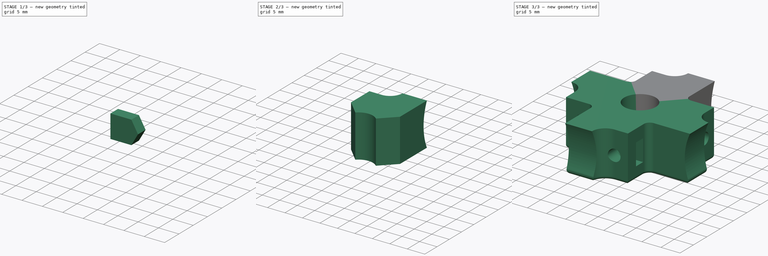
[diagram: build sequence overview — one tinted view per stage of 3, left to right]
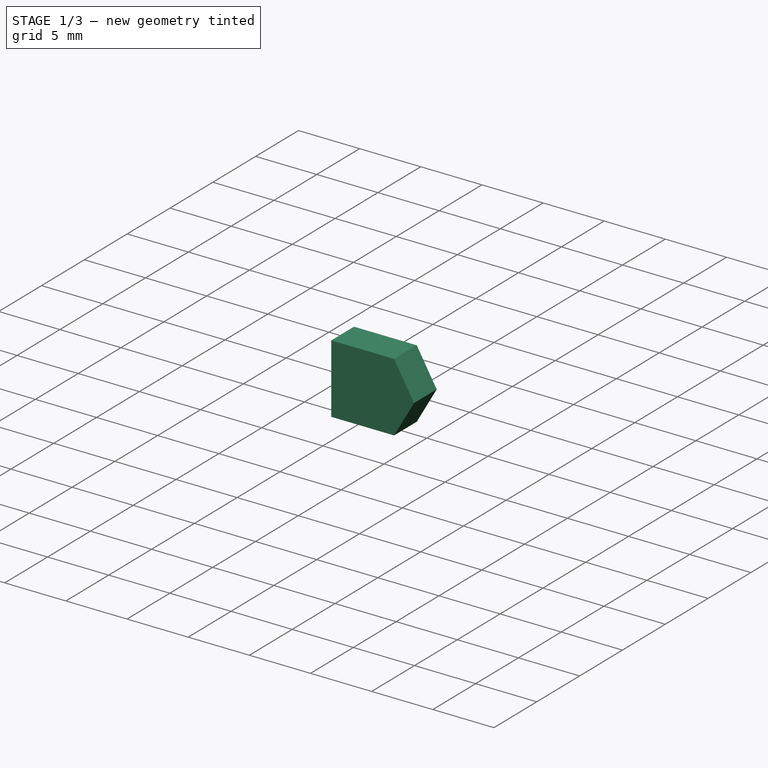
[diagram: stage 1 of 3 — iso view after this stage's code; geometry added in this stage tinted green]
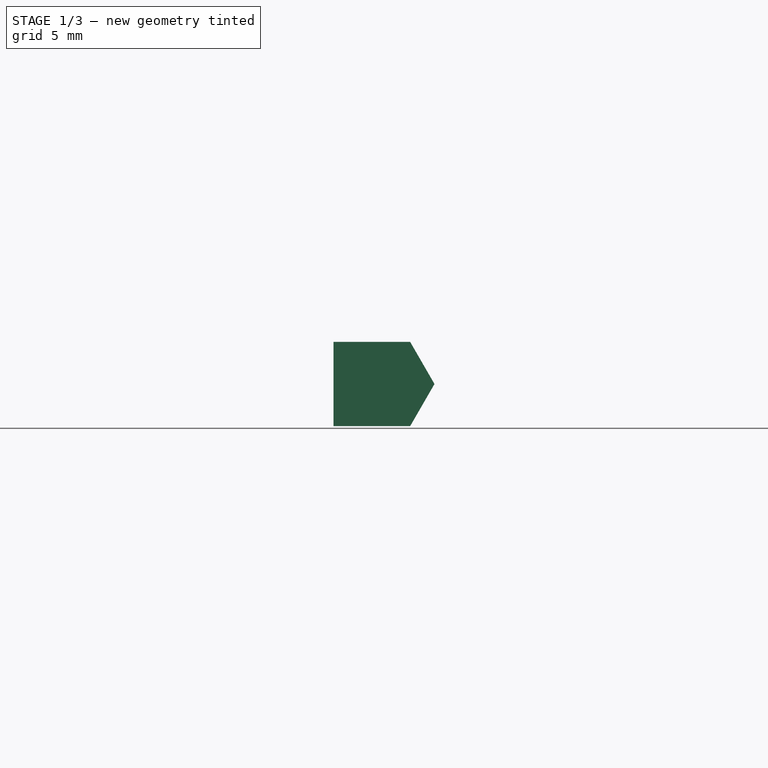
[diagram: stage 1 of 3 — front view after this stage's code; geometry added in this stage tinted green]
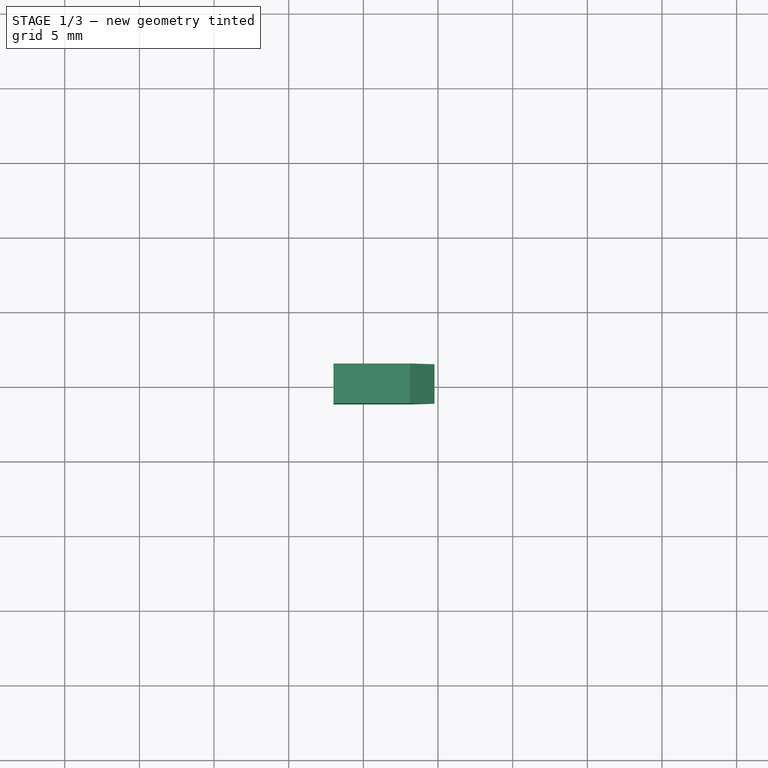
[diagram: stage 1 of 3 — top view after this stage's code; geometry added in this stage tinted green]
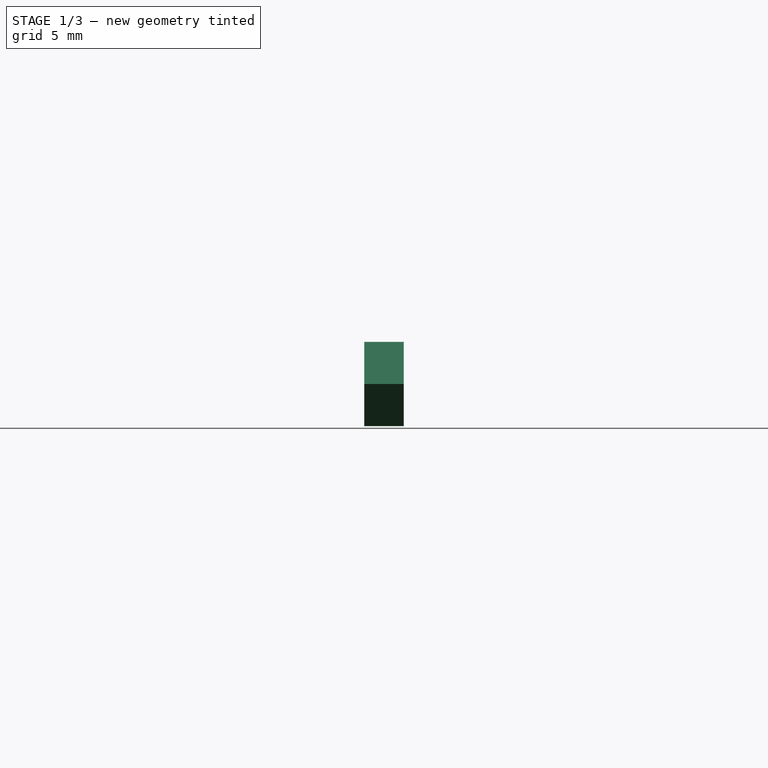
[diagram: stage 1 of 3 — right view after this stage's code; geometry added in this stage tinted green]
FCSTD DOCUMENT  (FreeCAD 0.16RUnknown)
Label: joint-base-x.012
License: All rights reserved
LicenseURL: http://en.wikipedia.org/wiki/All_rights_reserved
objects: Sketcher::SketchObject×4, Part::Feature×3, Part::Extrusion×2, PartDesign::Pocket×2, Part::Fillet×2, Part::Cut×1, Part::MultiFuse×1
note: 17 computed .brp shape members not serialized (recipe doc carries the construction recipe); baked Part::Feature solids carry a one-line shape summary decoded from their .brp

FEATURE [Sketcher::SketchObject] Sketch
  sketch-geometry (13):
    g0: ArcOfCircle CenterX=0 CenterY=0 CenterZ=0 NormalX=0 NormalY=0 NormalZ=1 Radius=4.15 StartAngle=0.785398 EndAngle=2.35619
    g1: ArcOfCircle [constr] CenterX=0 CenterY=0 CenterZ=0 NormalX=0 NormalY=0 NormalZ=1 Radius=4.15 StartAngle=2.35619 EndAngle=7.06858
    g2: LineSegment [constr] StartX=0 StartY=0 StartZ=0 EndX=-2.93449 EndY=2.93449 EndZ=0
    g3: LineSegment StartX=-2.93449 StartY=2.93449 StartZ=0 EndX=-7 EndY=7 EndZ=0
    g4: LineSegment StartX=-7 StartY=7 StartZ=0 EndX=-7 EndY=14.5 EndZ=0
    g5: LineSegment StartX=-7 StartY=14.5 StartZ=0 EndX=-3.5 EndY=14.5 EndZ=0
    g6: LineSegment [constr] StartX=-3.5 StartY=14.5 StartZ=0 EndX=-3.5 EndY=18 EndZ=0
    g7: LineSegment [constr] StartX=-3.5 StartY=18 StartZ=0 EndX=0 EndY=18 EndZ=0
    g8: LineSegment StartX=0 StartY=18 StartZ=0 EndX=7 EndY=18 EndZ=0
    g9: LineSegment StartX=7 StartY=18 StartZ=0 EndX=7 EndY=7 EndZ=0
    g10: LineSegment StartX=7 StartY=7 StartZ=0 EndX=2.93449 EndY=2.93449 EndZ=0
    g11: LineSegment [constr] StartX=2.93449 StartY=2.93449 StartZ=0 EndX=-2.93449 EndY=2.93449 EndZ=0
    g12: ArcOfCircle CenterX=-3.5 CenterY=18 CenterZ=0 NormalX=0 NormalY=0 NormalZ=1 Radius=3.5 StartAngle=4.71239 EndAngle=6.28319
  constraints (36):
    c: Coincident(g0,g1)
    c: Coincident(g0,g-1)
    c: Coincident(g0,g1)
    c: Coincident(g0,g1)
    c: Coincident(g2,g3)
    c: Coincident(g3,g4)
    c: Vertical(g4)
    c: Coincident(g4,g5)
    c: Horizontal(g5)
    c: Coincident(g5,g6)
    c: Vertical(g6)
    c: Coincident(g6,g7)
    c: Horizontal(g7)
    c: Coincident(g7,g8)
    c: Horizontal(g8)
    c: Coincident(g8,g9)
    c: Vertical(g9)
    c: Coincident(g9,g10)
    c: Coincident(g10,g11)
    c: Horizontal(g11)
    c: Coincident(g0,g2)
    c: Coincident(g0,g2)
    c: Coincident(g0,g11)
    c: Coincident(g0,g10)
    c: Coincident(g6,g12)
    c: Coincident(g7,g12)
    c: Coincident(g5,g12)
    c: PointOnObject(g7,g-2)
    c: Equal(g5,g7)
    c: Equal(g3,g10)
    c: Angle(g3,g4) = 2.35619
    c: Angle(g9,g10) = 2.35619
    c: DistanceX(g4,g8) = 14
    c: DistanceY(g9,g9) = 11
    c: Parallel(g2,g3)
    c: Radius(g0) = 4.15
FEATURE [Part::Extrusion] Extrude
  Base = -> Sketch
  Dir = (0,0,12.2)
  Solid = true
FEATURE [Sketcher::SketchObject] Sketch001
  ExternalGeometry = -> [Extrude]
  Placement = pos=(0,14.5,0) rot=(0,0.707107,0.707107;3.14159rad)
  Support = -> Extrude [Face4]
  sketch-geometry (3):
    g0: Circle CenterX=3.5 CenterY=6.1 CenterZ=0 NormalX=0 NormalY=0 NormalZ=1 Radius=1.55
    g1: LineSegment [constr] StartX=3.5 StartY=12.2 StartZ=0 EndX=3.5 EndY=6.1 EndZ=0
    g2: LineSegment [constr] StartX=3.5 StartY=6.1 StartZ=0 EndX=3.5 EndY=0 EndZ=0
  constraints (8):
    c: Vertical(g1)
    c: Coincident(g1,g2)
    c: Vertical(g2)
    c: Equal(g1,g2)
    c: Coincident(g0,g1)
    c: Coincident(g1,g-3)
    c: Coincident(g2,g-3)
    c: Radius(g0) = 1.55
FEATURE [PartDesign::Pocket] Pocket
  Length = 14
  Midplane = true
  Sketch = -> Sketch001
  Type = 0
FEATURE [Sketcher::SketchObject] Sketch002
  ExternalGeometry = -> [Pocket]
  Placement = pos=(0,14.5,0) rot=(0,0.707107,0.707107;3.14159rad)
  Support = -> Pocket [Face8]
  sketch-geometry (6):
    g0: LineSegment [constr] StartX=3.5 StartY=6.1 StartZ=0 EndX=0.237971 EndY=6.1 EndZ=0
    g1: LineSegment StartX=0.237971 StartY=6.1 StartZ=0 EndX=1.86899 EndY=8.925 EndZ=0
    g2: LineSegment StartX=1.86899 StartY=8.925 StartZ=0 EndX=7 EndY=8.925 EndZ=0
    g3: LineSegment StartX=7 StartY=8.925 StartZ=0 EndX=7 EndY=3.275 EndZ=0
    g4: LineSegment StartX=7 StartY=3.275 StartZ=0 EndX=1.86899 EndY=3.275 EndZ=0
    g5: LineSegment StartX=1.86899 StartY=3.275 StartZ=0 EndX=0.237971 EndY=6.1 EndZ=0
  constraints (17):
    c: Horizontal(g0)
    c: Coincident(g0,g1)
    c: Coincident(g1,g2)
    c: Horizontal(g2)
    c: Coincident(g2,g3)
    c: Vertical(g3)
    c: Coincident(g3,g4)
    c: Horizontal(g4)
    c: Coincident(g4,g5)
    c: Coincident(g0,g5)
    c: Coincident(g0,g-3)
    c: Equal(g2,g4)
    c: DistanceY(g3,g3) = 5.65
    c: Angle(g5,g1) = 2.0944
    c: Equal(g5,g0)
    c: Equal(g0,g1)
    c: PointOnObject(g2,g-4)
FEATURE [Part::Extrusion] Extrude001
  Base = -> Sketch002
  Dir = (0,-2.65,0)
  Placement = pos=(0,-3,0) rot=(0,0,1;0rad)
  Solid = true
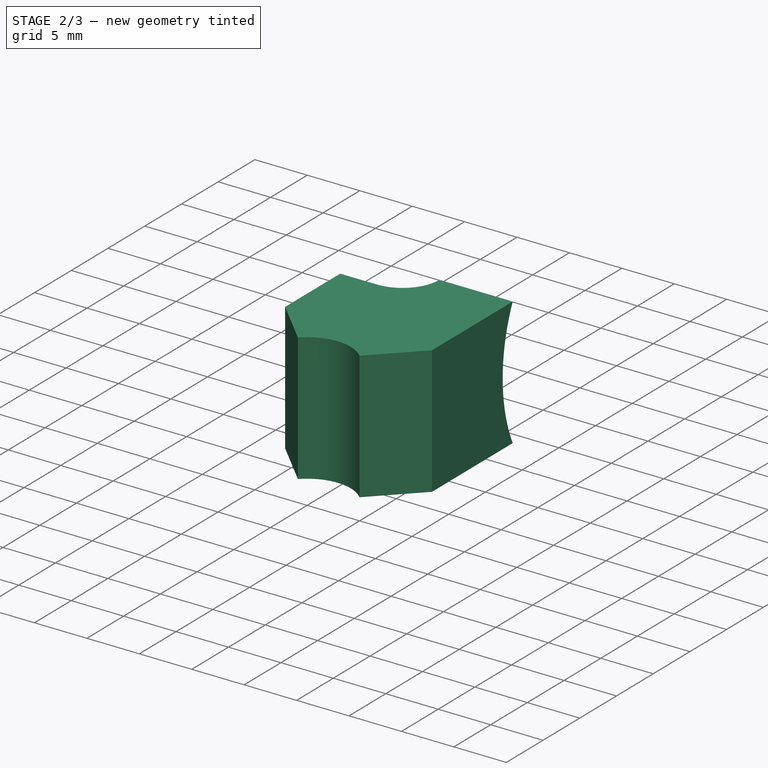
[diagram: stage 2 of 3 — iso view after this stage's code; geometry added in this stage tinted green]
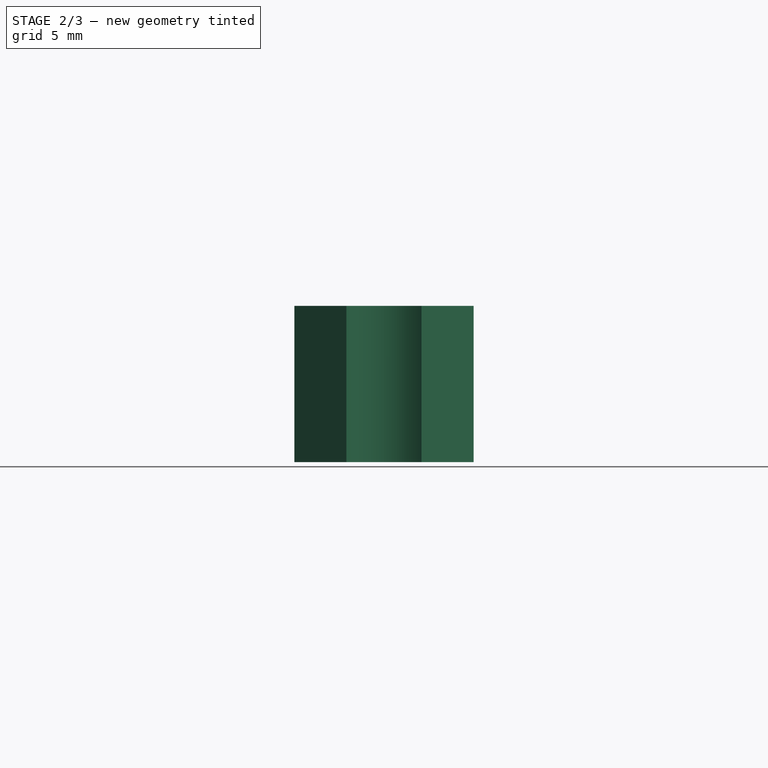
[diagram: stage 2 of 3 — front view after this stage's code; geometry added in this stage tinted green]
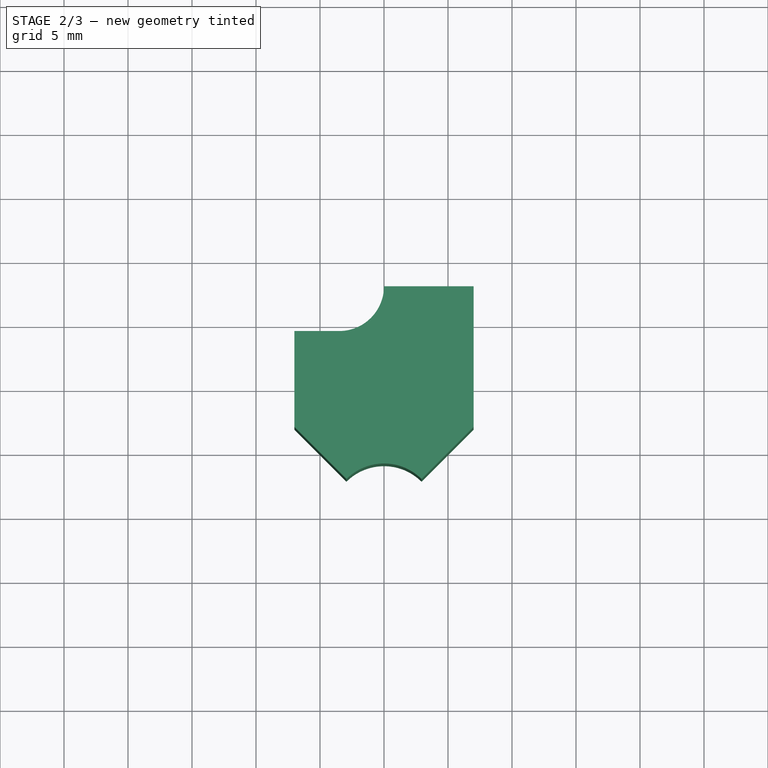
[diagram: stage 2 of 3 — top view after this stage's code; geometry added in this stage tinted green]
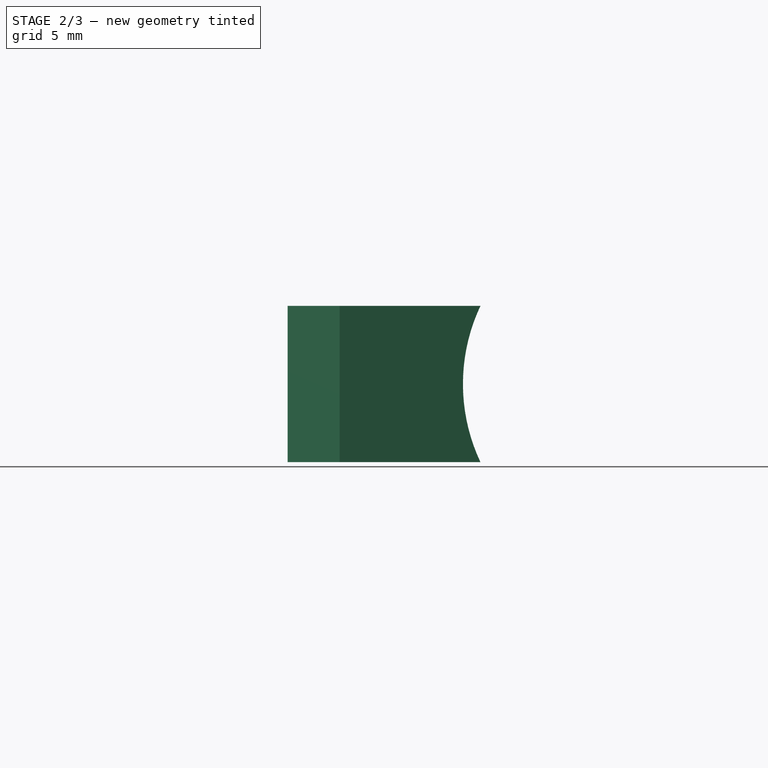
[diagram: stage 2 of 3 — right view after this stage's code; geometry added in this stage tinted green]
FEATURE [Part::Cut] Cut
  Base = -> Pocket
  Tool = -> Extrude001
FEATURE [Sketcher::SketchObject] Sketch003
  ExternalGeometry = -> [Cut]
  Placement = pos=(7,0,0) rot=(0.57735,0.57735,0.57735;2.0944rad)
  Support = -> Cut [Face6]
  sketch-geometry (2):
    g0: LineSegment StartX=18 StartY=12.2 StartZ=0 EndX=18 EndY=0 EndZ=0
    g1: ArcOfCircle CenterX=30.9337 CenterY=6.1 CenterZ=0 NormalX=0 NormalY=0 NormalZ=1 Radius=14.3 StartAngle=2.70089 EndAngle=3.58229
  constraints (6):
    c: Vertical(g0)
    c: Coincident(g0,g1)
    c: Coincident(g0,g-3)
    c: Coincident(g0,g1)
    c: Coincident(g0,g-3)
    c: Radius(g1) = 14.3
FEATURE [PartDesign::Pocket] Pocket001
  Length = 5
  Sketch = -> Sketch003
  Type = 1
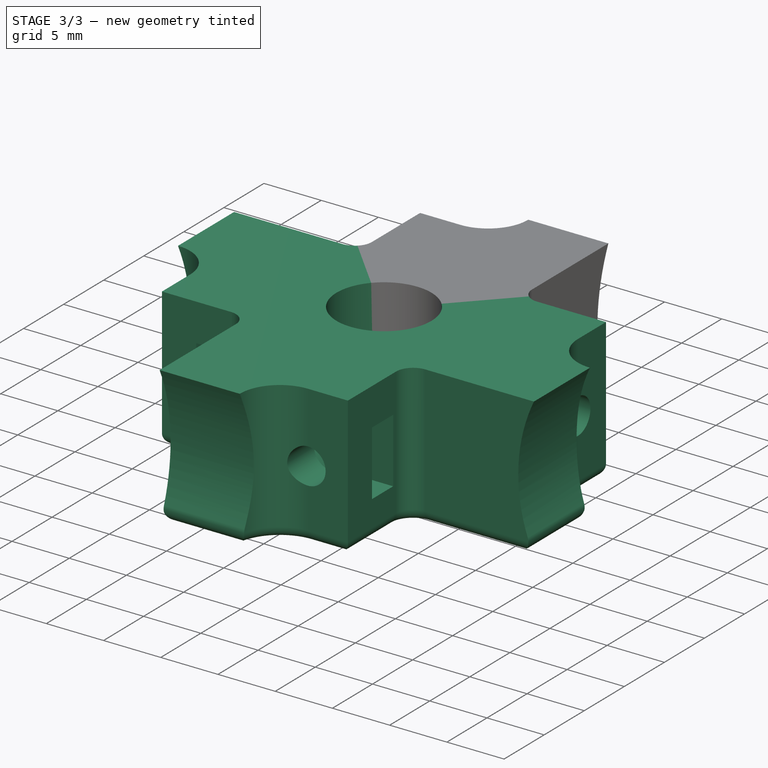
[diagram: stage 3 of 3 — iso view after this stage's code; geometry added in this stage tinted green]
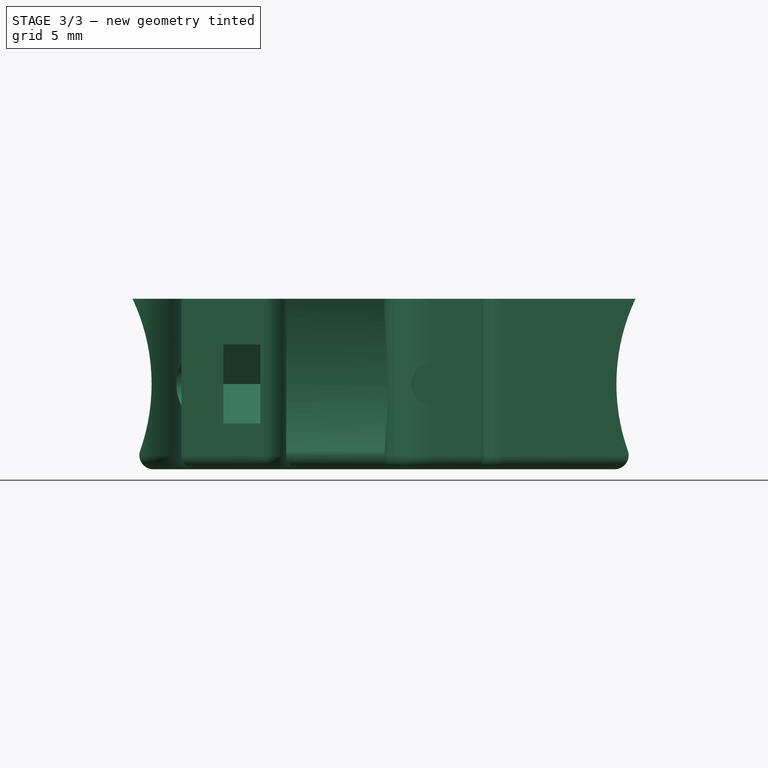
[diagram: stage 3 of 3 — front view after this stage's code; geometry added in this stage tinted green]
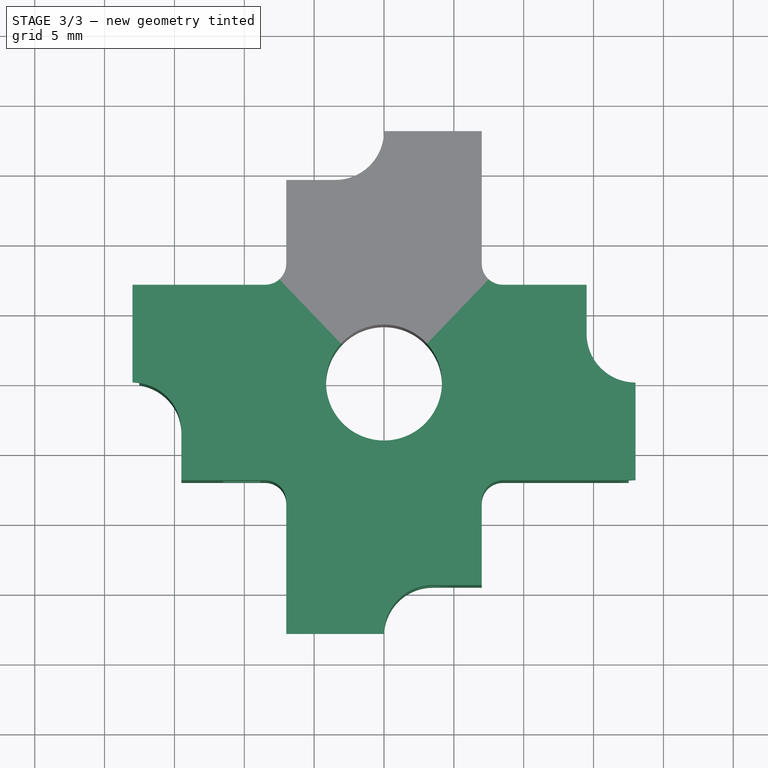
[diagram: stage 3 of 3 — top view after this stage's code; geometry added in this stage tinted green]
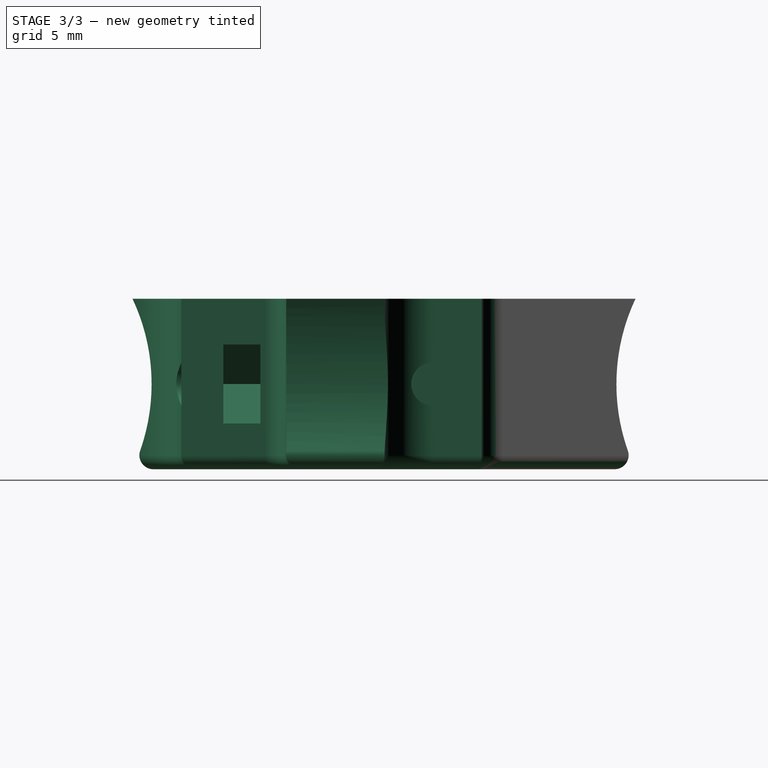
[diagram: stage 3 of 3 — right view after this stage's code; geometry added in this stage tinted green]
FEATURE [Part::Feature] Pocket001001  label="Pocket002"
  Placement = pos=(0,0,0) rot=(0,0,1;1.5708rad)
  shape: bbox 15.07 x 14 x 12.2 mm, 19 faces (baked)
FEATURE [Part::Feature] Pocket001002  label="Pocket003"
  Placement = pos=(0,0,0) rot=(0,0,1;3.14159rad)
  shape: bbox 14 x 15.07 x 12.2 mm, 19 faces (baked)
FEATURE [Part::Feature] Pocket001003  label="Pocket004"
  Placement = pos=(0,0,0) rot=(0,0,1;4.71239rad)
  shape: bbox 15.07 x 14 x 12.2 mm, 19 faces (baked)
FEATURE [Part::MultiFuse] Fusion
  Shapes = -> [Pocket001,Pocket001003,Pocket001001,Pocket001002]
FEATURE [Part::Fillet] Fillet
  Base = -> Fusion
  Edges = 4 edges r=1.5: [Edge6,Edge45,Edge93,Edge97]
FEATURE [Part::Fillet] Fillet001
  Base = -> Fillet
  Edges = 32 edges r=1: [Edge1,Edge6,Edge7,Edge9,Edge10,Edge11,Edge12,Edge13,Edge14,Edge28,Edge29,Edge30,Edge31,Edge32,Edge33,Edge34,Edge37,Edge38,Edge39,Edge41,Edge42,Edge43,Edge44,Edge45,Edge80,Edge81,Edge82,Edge83,Edge84,Edge85,Edge86,Edge87]
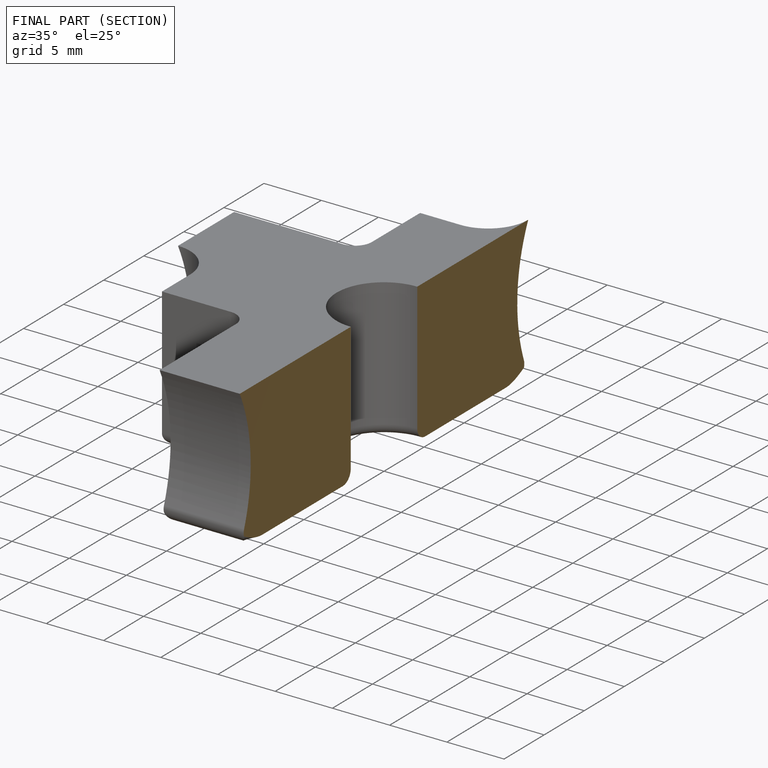
[diagram: finished part — half-section view (interior)]
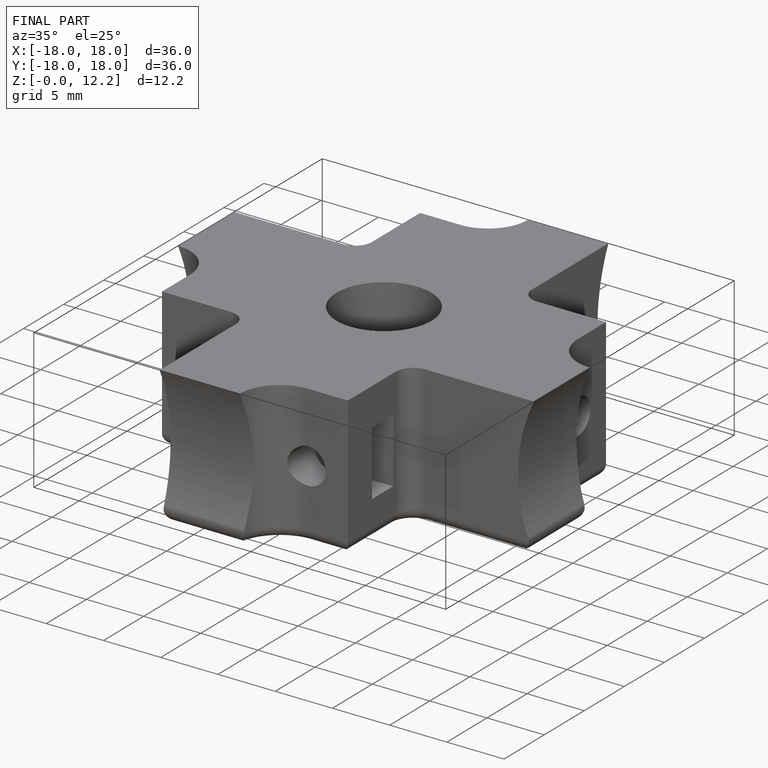
[diagram: finished part — iso view with bounding-box wireframe]
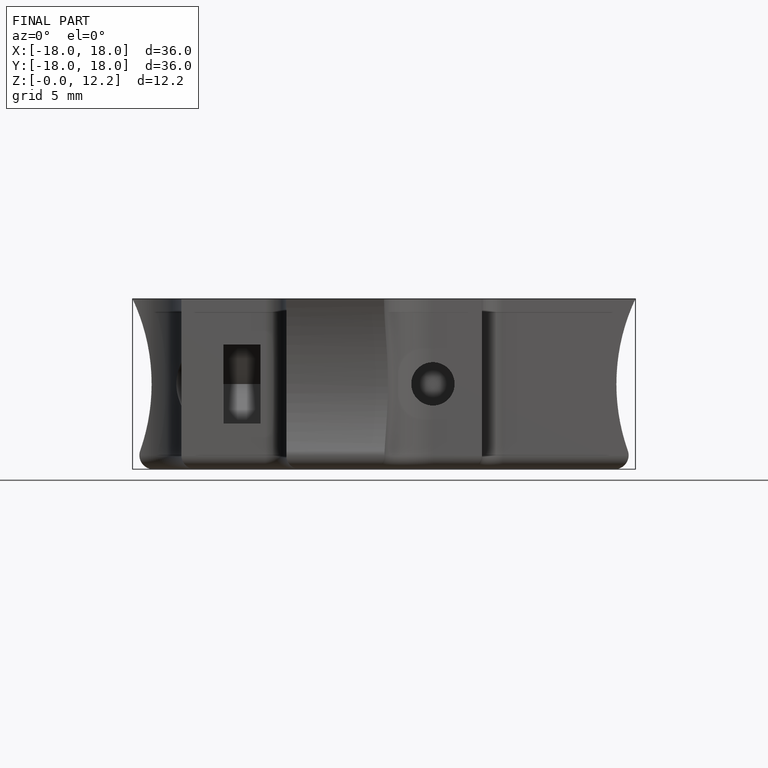
[diagram: finished part — front view with bounding-box wireframe]
